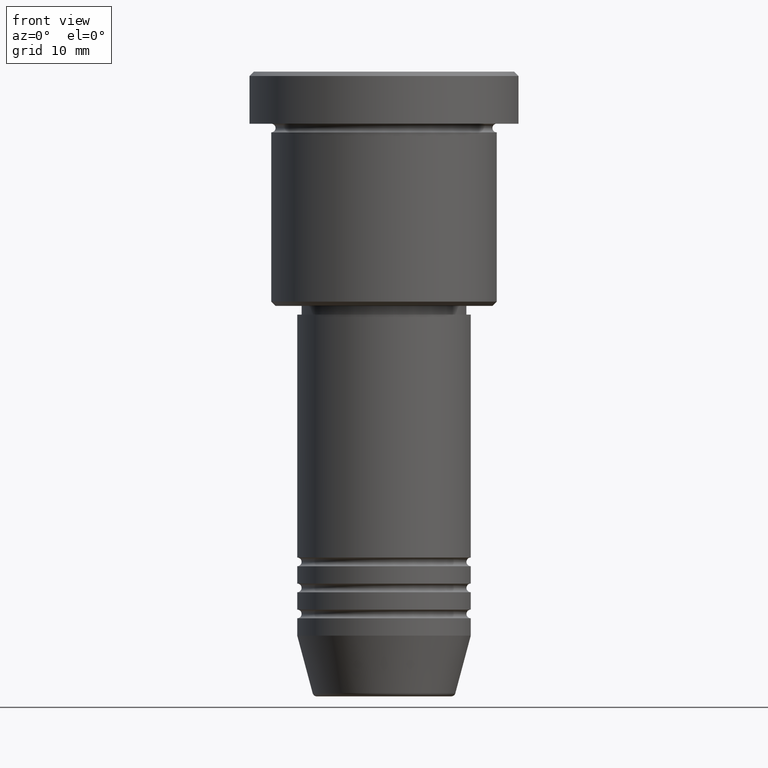
[diagram: clean part render]
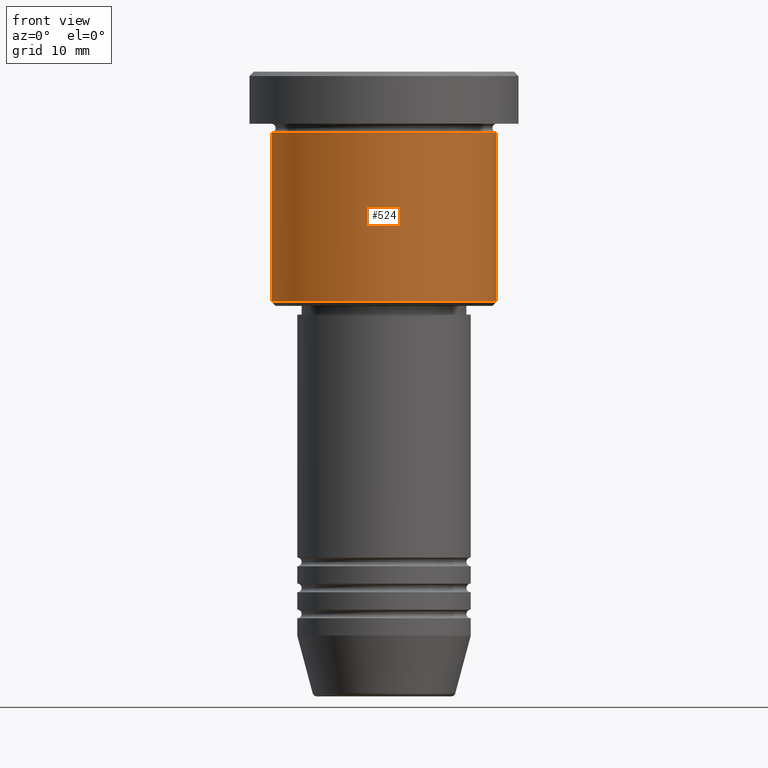
[diagram: same view with one face highlighted and labeled with its STEP entity id]
A machine part, front view. The second image highlights one B-rep face of the part: STEP entity #524.
In plain terms, the highlighted cylindrical surface (partial cylindrical patch) has radius 13 mm, axis along (-0, -0, 1).
Its self-contained STEP definition (entity closure, byte-faithful):
#71 = DIRECTION ( 'NONE',  ( 1.000000000000000000, 0.000000000000000000, 0.000000000000000000 ) ) ;
#77 = ORIENTED_EDGE ( 'NONE', *, *, #198, .T. ) ;
#95 = EDGE_CURVE ( 'NONE', #328, #853, #173, .T. ) ;
#100 = AXIS2_PLACEMENT_3D ( 'NONE', #259, #519, #71 ) ;
#101 = AXIS2_PLACEMENT_3D ( 'NONE', #1056, #778, #881 ) ;
#156 = VECTOR ( 'NONE', #555, 1000.000000000000000 ) ;
#163 = CARTESIAN_POINT ( 'NONE',  ( 13.00000000000000000, 0.000000000000000000, -26.49999999999998224 ) ) ;
#173 = CIRCLE ( 'NONE', #100, 13.00000000000000000 ) ;
#176 = LINE ( 'NONE', #734, #156 ) ;
#198 = EDGE_CURVE ( 'NONE', #1118, #853, #772, .T. ) ;
#259 = CARTESIAN_POINT ( 'NONE',  ( 0.000000000000000000, 0.000000000000000000, -6.999999999999995559 ) ) ;
#328 = VERTEX_POINT ( 'NONE', #952 ) ;
#471 = DIRECTION ( 'NONE',  ( -0.000000000000000000, -0.000000000000000000, 1.000000000000000000 ) ) ;
#480 = DIRECTION ( 'NONE',  ( -0.000000000000000000, -0.000000000000000000, 1.000000000000000000 ) ) ;
#519 = DIRECTION ( 'NONE',  ( -0.000000000000000000, -0.000000000000000000, 1.000000000000000000 ) ) ;
#524 = ADVANCED_FACE ( 'NONE', ( #866 ), #664, .T. ) ;
#545 = CARTESIAN_POINT ( 'NONE',  ( 13.00000000000000000, 0.000000000000000000, -6.999999999999995559 ) ) ;
#555 = DIRECTION ( 'NONE',  ( -0.000000000000000000, -0.000000000000000000, 1.000000000000000000 ) ) ;
#578 = CIRCLE ( 'NONE', #1040, 13.00000000000000000 ) ;
#603 = ORIENTED_EDGE ( 'NONE', *, *, #95, .F. ) ;
#646 = CARTESIAN_POINT ( 'NONE',  ( -13.00000000000000000, 1.592040838891559095E-15, -26.49999999999998224 ) ) ;
#664 = CYLINDRICAL_SURFACE ( 'NONE', #101, 13.00000000000000000 ) ;
#734 = CARTESIAN_POINT ( 'NONE',  ( -13.00000000000000000, 1.592040838891559095E-15, 0.000000000000000000 ) ) ;
#756 = DIRECTION ( 'NONE',  ( -1.000000000000000000, 0.000000000000000000, 0.000000000000000000 ) ) ;
#772 = LINE ( 'NONE', #1144, #1017 ) ;
#778 = DIRECTION ( 'NONE',  ( -0.000000000000000000, -0.000000000000000000, 1.000000000000000000 ) ) ;
#852 = VERTEX_POINT ( 'NONE', #646 ) ;
#853 = VERTEX_POINT ( 'NONE', #545 ) ;
#857 = EDGE_CURVE ( 'NONE', #852, #328, #176, .T. ) ;
#866 = FACE_OUTER_BOUND ( 'NONE', #918, .T. ) ;
#881 = DIRECTION ( 'NONE',  ( 1.000000000000000000, 0.000000000000000000, 0.000000000000000000 ) ) ;
#918 = EDGE_LOOP ( 'NONE', ( #1079, #1140, #77, #603 ) ) ;
#945 = CARTESIAN_POINT ( 'NONE',  ( 0.000000000000000000, 0.000000000000000000, -26.49999999999998224 ) ) ;
#952 = CARTESIAN_POINT ( 'NONE',  ( -13.00000000000000000, 1.592040838891559095E-15, -6.999999999999995559 ) ) ;
#1017 = VECTOR ( 'NONE', #471, 1000.000000000000000 ) ;
#1040 = AXIS2_PLACEMENT_3D ( 'NONE', #945, #480, #756 ) ;
#1056 = CARTESIAN_POINT ( 'NONE',  ( 0.000000000000000000, 0.000000000000000000, 0.000000000000000000 ) ) ;
#1079 = ORIENTED_EDGE ( 'NONE', *, *, #857, .F. ) ;
#1082 = EDGE_CURVE ( 'NONE', #852, #1118, #578, .T. ) ;
#1118 = VERTEX_POINT ( 'NONE', #163 ) ;
#1140 = ORIENTED_EDGE ( 'NONE', *, *, #1082, .T. ) ;
#1144 = CARTESIAN_POINT ( 'NONE',  ( 13.00000000000000000, 0.000000000000000000, 0.000000000000000000 ) ) ;